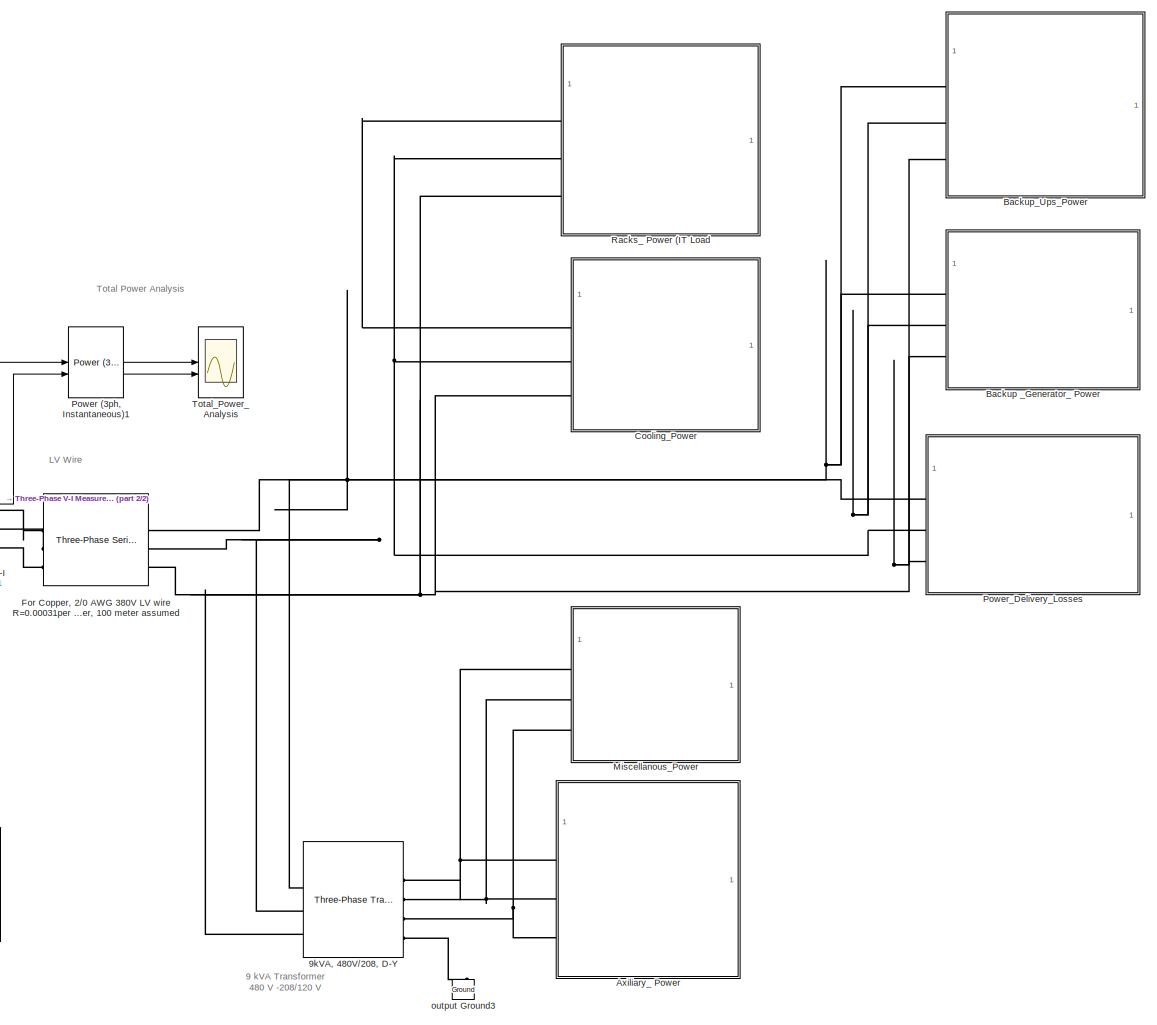
[diagram: root canvas - part 1/2, right side, full height]
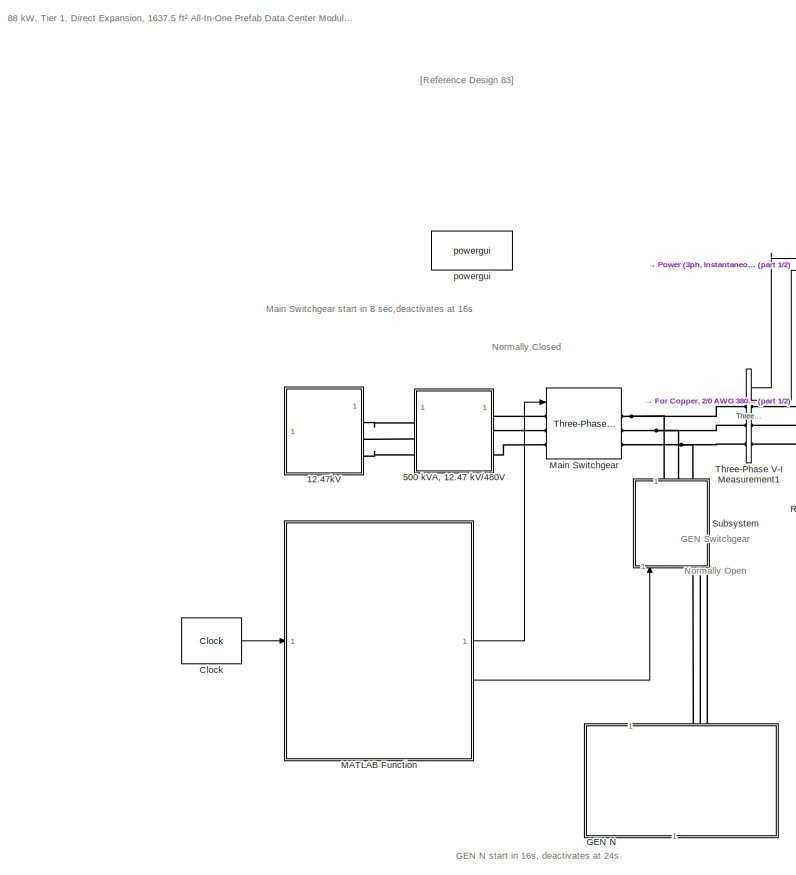
[diagram: root canvas - part 2/2, left side, full height]
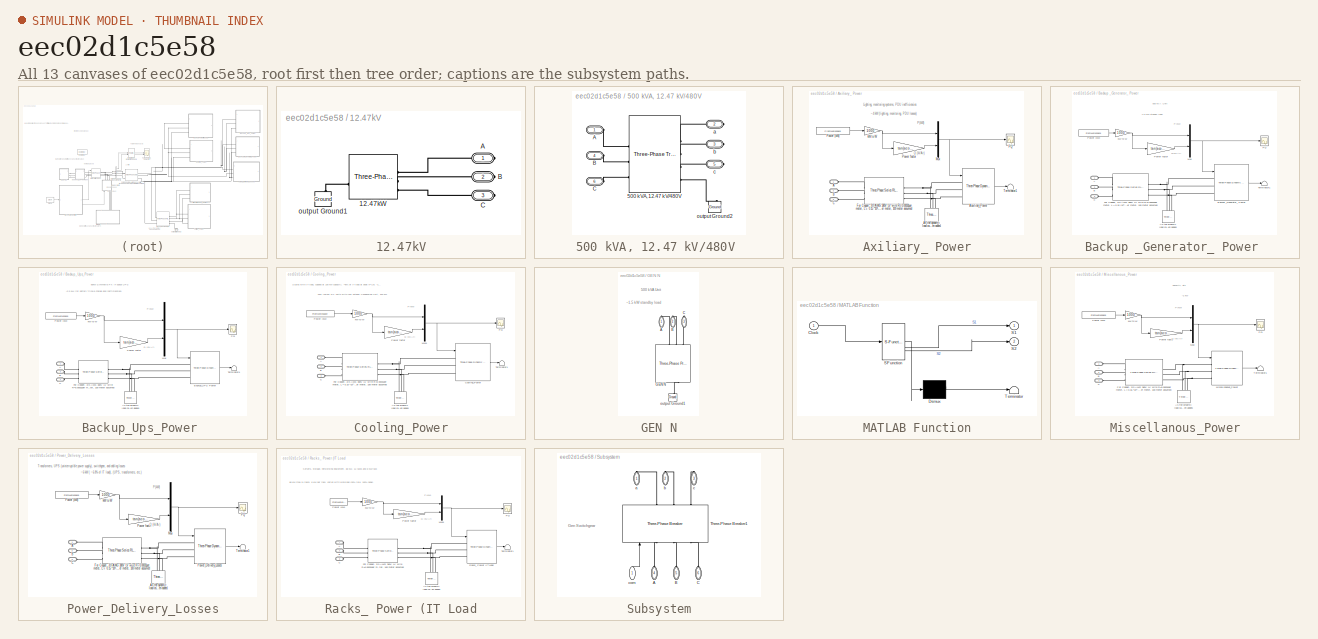
[diagram: thumbnail index - all 13 canvases of the model, root first then tree order]
MODEL slx_eec02d1c5e58
KIND model
CONFIG AbsTol = auto
CONFIG EnableMultiTasking = off
CONFIG FixedStep = auto
CONFIG InitFcn = load('DataCenterPower.mat')
CONFIG MaxStep = auto
CONFIG MinStep = auto
CONFIG RelTol = 1e-4
CONFIG SampleTimeConstraint = Unconstrained
CONFIG SolverName = ode45
CONFIG StartTime = 0.0
CONFIG StopTime = 24
BLOCK [SubSystem] 12.47kV
BLOCK [Reference] 12.47kV/12.47kW  REF=spsThreePhaseProgrammableVoltageSourceLib/Three-Phase
Programmable
Voltage Source
  SourceBlock = spsThreePhaseProgrammableVoltageSourceLib/Three-Phase\nProgrammable\nVoltage Source
  SourceType = Three-Phase Programmable Voltage Source
BLOCK [PMIOPort] 12.47kV/A
  Side = Right
BLOCK [PMIOPort] 12.47kV/B
  Port = 2
  Side = Right
BLOCK [PMIOPort] 12.47kV/C
  Port = 3
  Side = Right
BLOCK [Reference] 12.47kV/output Ground1  REF=spsGroundLib/Ground
  AttributesFormatString = \n
  NameLocation = right
  SourceBlock = spsGroundLib/Ground
  SourceType = Ground
BLOCK [SubSystem] 500 kVA, 12.47 kV//480V 
BLOCK [Reference] 500 kVA, 12.47 kV//480V /500 kVA, 12.47 kV//480V   REF=spsThreePhaseTransformerTwoWindingsLib/Three-Phase
Transformer
(Two Windings)
  LibrarySourceBlock = sps_lib/Power Grid Elements/Three-Phase\nTransformer\n(Two Windings)
  SourceBlock = spsThreePhaseTransformerTwoWindingsLib/Three-Phase\nTransformer\n(Two Windings)
  SourceType = Three-Phase Transformer (Two Windings)
BLOCK [PMIOPort] 500 kVA, 12.47 kV//480V /A
  Side = Left
BLOCK [PMIOPort] 500 kVA, 12.47 kV//480V /B
  Port = 4
  Side = Left
BLOCK [PMIOPort] 500 kVA, 12.47 kV//480V /C
  Port = 6
  Side = Left
BLOCK [PMIOPort] 500 kVA, 12.47 kV//480V /a
  Port = 2
  Side = Right
BLOCK [PMIOPort] 500 kVA, 12.47 kV//480V /b
  Port = 3
  Side = Right
BLOCK [PMIOPort] 500 kVA, 12.47 kV//480V /c
  Port = 5
  Side = Right
BLOCK [Reference] 500 kVA, 12.47 kV//480V /output Ground2  REF=spsGroundLib/Ground
  AttributesFormatString = \n
  NameLocation = right
  SourceBlock = spsGroundLib/Ground
  SourceType = Ground
BLOCK [Reference] 9kVA, 480V//208, D-Y  REF=spsThreePhaseTransformerTwoWindingsLib/Three-Phase
Transformer
(Two Windings)
  LibrarySourceBlock = sps_lib/Power Grid Elements/Three-Phase\nTransformer\n(Two Windings)
  SourceBlock = spsThreePhaseTransformerTwoWindingsLib/Three-Phase\nTransformer\n(Two Windings)
  SourceType = Three-Phase Transformer (Two Windings)
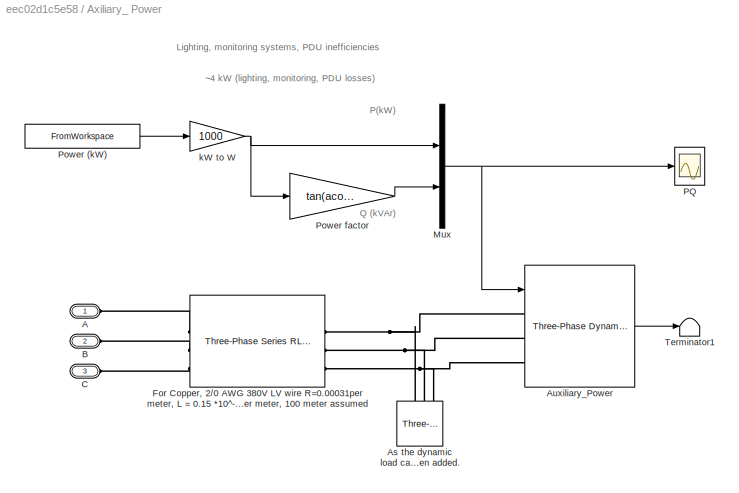
BLOCK [SubSystem] Axiliary_ Power
BLOCK [PMIOPort] Axiliary_ Power/A
  Side = Left
BLOCK [Reference] Axiliary_ Power/As the dynamic load cannot be connected to an inductive network (R-L in series), a small resistive load (1 W) has been added.  REF=spsThreePhaseParallelRLCLoadLib/Three-Phase
Parallel RLC Load
  AttributesFormatString = \n
  SourceBlock = spsThreePhaseParallelRLCLoadLib/Three-Phase\nParallel RLC Load
  SourceType = Three-Phase Parallel RLC Load
BLOCK [Reference] Axiliary_ Power/Auxiliary_Power  REF=spsThreePhaseDynamicLoadLib/Three-Phase
Dynamic Load
  SourceBlock = spsThreePhaseDynamicLoadLib/Three-Phase\nDynamic Load
  SourceType = Three-Phase Dynamic Load
BLOCK [PMIOPort] Axiliary_ Power/B
  Port = 2
  Side = Left
BLOCK [PMIOPort] Axiliary_ Power/C
  Port = 3
  Side = Left
BLOCK [Reference] Axiliary_ Power/For Copper, 2//0 AWG 380V LV wire R=0.00031per meter, L = 0.15 *10^-6 H per meter, 100 meter assumed   REF=spsThreePhaseSeriesRLCBranchLib/Three-Phase
Series RLC Branch
  AttributesFormatString = \n
  SourceBlock = spsThreePhaseSeriesRLCBranchLib/Three-Phase\nSeries RLC Branch
  SourceType = Three-Phase Series RLC Branch
BLOCK [Mux] Axiliary_ Power/Mux
  DisplayOption = bar
  Inputs = 2
BLOCK [Scope] Axiliary_ Power/PQ
  Floating = off
  NumInputPorts = 1
  ScopeSpecificationString = Simulink.scopes.TimeScopeBlockCfg('CurrentConfiguration', extmgr.ConfigurationSet(extmgr.Configuration('Core','General UI',true),extmgr.Configuration('Core','Source UI',true),extmgr.Configuration('Sources','WiredSimulink',true,'DataLoggingVariableName','ScopeData3'),extmgr.Configuration('Visuals','Time Domain',true,'TimeAxisLabels','All','SerializedDisplays',{struct('MinYLimReal','-597.75','MaxYLi...<+2052ch>
BLOCK [FromWorkspace] Axiliary_ Power/Power (kW)
  VariableName = AuxiliaryPowerkW
BLOCK [Gain] Axiliary_ Power/Power factor
  Gain = tan(acos(1))
BLOCK [Terminator] Axiliary_ Power/Terminator1
BLOCK [Gain] Axiliary_ Power/kW to W
  Gain = 1000
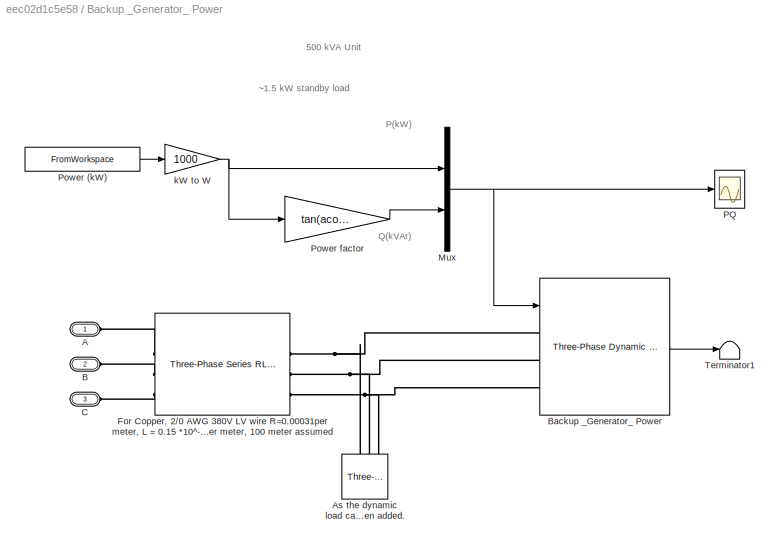
BLOCK [SubSystem] Backup _Generator_ Power 
BLOCK [PMIOPort] Backup _Generator_ Power /A
  Side = Left
BLOCK [Reference] Backup _Generator_ Power /As the dynamic load cannot be connected to an inductive network (R-L in series), a small resistive load (1 W) has been added.  REF=spsThreePhaseParallelRLCLoadLib/Three-Phase
Parallel RLC Load
  AttributesFormatString = \n
  SourceBlock = spsThreePhaseParallelRLCLoadLib/Three-Phase\nParallel RLC Load
  SourceType = Three-Phase Parallel RLC Load
BLOCK [PMIOPort] Backup _Generator_ Power /B
  Port = 2
  Side = Left
BLOCK [Reference] Backup _Generator_ Power /Backup _Generator_ Power   REF=spsThreePhaseDynamicLoadLib/Three-Phase
Dynamic Load
  SourceBlock = spsThreePhaseDynamicLoadLib/Three-Phase\nDynamic Load
  SourceType = Three-Phase Dynamic Load
BLOCK [PMIOPort] Backup _Generator_ Power /C
  Port = 3
  Side = Left
BLOCK [Reference] Backup _Generator_ Power /For Copper, 2//0 AWG 380V LV wire R=0.00031per meter, L = 0.15 *10^-6 H per meter, 100 meter assumed   REF=spsThreePhaseSeriesRLCBranchLib/Three-Phase
Series RLC Branch
  AttributesFormatString = \n
  SourceBlock = spsThreePhaseSeriesRLCBranchLib/Three-Phase\nSeries RLC Branch
  SourceType = Three-Phase Series RLC Branch
BLOCK [Mux] Backup _Generator_ Power /Mux
  DisplayOption = bar
  Inputs = 2
BLOCK [Scope] Backup _Generator_ Power /PQ
  Floating = off
  NumInputPorts = 1
  ScopeSpecificationString = Simulink.scopes.TimeScopeBlockCfg('CurrentConfiguration', extmgr.ConfigurationSet(extmgr.Configuration('Core','General UI',true),extmgr.Configuration('Core','Source UI',true),extmgr.Configuration('Sources','WiredSimulink',true,'DataLoggingVariableName','ScopeData1'),extmgr.Configuration('Visuals','Time Domain',true,'TimeAxisLabels','All','SerializedDisplays',{struct('MinYLimReal','-1476.25','MaxYL...<+2126ch>
BLOCK [FromWorkspace] Backup _Generator_ Power /Power (kW)
  VariableName = BackupGeneratorPowerkW
BLOCK [Gain] Backup _Generator_ Power /Power factor
  Gain = tan(acos(1))
BLOCK [Terminator] Backup _Generator_ Power /Terminator1
BLOCK [Gain] Backup _Generator_ Power /kW to W
  Gain = 1000
BLOCK [SubSystem] Backup_Ups_Power 
BLOCK [PMIOPort] Backup_Ups_Power /A
  Side = Left
BLOCK [Reference] Backup_Ups_Power /As the dynamic load cannot be connected to an inductive network (R-L in series), a small resistive load (1 W) has been added.  REF=spsThreePhaseParallelRLCLoadLib/Three-Phase
Parallel RLC Load
  AttributesFormatString = \n
  SourceBlock = spsThreePhaseParallelRLCLoadLib/Three-Phase\nParallel RLC Load
  SourceType = Three-Phase Parallel RLC Load
BLOCK [PMIOPort] Backup_Ups_Power /B
  Port = 2
  Side = Left
BLOCK [Reference] Backup_Ups_Power /Backup_UPS Power  REF=spsThreePhaseDynamicLoadLib/Three-Phase
Dynamic Load
  SourceBlock = spsThreePhaseDynamicLoadLib/Three-Phase\nDynamic Load
  SourceType = Three-Phase Dynamic Load
BLOCK [PMIOPort] Backup_Ups_Power /C
  Port = 3
  Side = Left
BLOCK [Reference] Backup_Ups_Power /For Copper, 2//0 AWG 380V LV wire R=0.00031per meter, L = 0.15 *10^-6 H per meter, 100 meter assumed   REF=spsThreePhaseSeriesRLCBranchLib/Three-Phase
Series RLC Branch
  AttributesFormatString = \n
  SourceBlock = spsThreePhaseSeriesRLCBranchLib/Three-Phase\nSeries RLC Branch
  SourceType = Three-Phase Series RLC Branch
BLOCK [Mux] Backup_Ups_Power /Mux
  DisplayOption = bar
  Inputs = 2
BLOCK [Scope] Backup_Ups_Power /PQ
  Floating = off
  NumInputPorts = 1
  ScopeSpecificationString = Simulink.scopes.TimeScopeBlockCfg('CurrentConfiguration', extmgr.ConfigurationSet(extmgr.Configuration('Core','General UI',true),extmgr.Configuration('Core','Source UI',true),extmgr.Configuration('Sources','WiredSimulink',true,'DataLoggingVariableName','ScopeData5'),extmgr.Configuration('Visuals','Time Domain',true,'TimeAxisLabels','All','SerializedDisplays',{struct('MinYLimReal','-374.125','MaxYL...<+2071ch>
BLOCK [FromWorkspace] Backup_Ups_Power /Power (kW)
  VariableName = BackupUPSPowerkW
BLOCK [Gain] Backup_Ups_Power /Power factor
  Gain = tan(acos(1))
BLOCK [Terminator] Backup_Ups_Power /Terminator1
BLOCK [Gain] Backup_Ups_Power /kW to W
  Gain = 1000
BLOCK [Clock] Clock
BLOCK [SubSystem] Cooling_Power
BLOCK [PMIOPort] Cooling_Power/A
  Side = Left
BLOCK [Reference] Cooling_Power/As the dynamic load cannot be connected to an inductive network (R-L in series), a small resistive load (1 W) has been added.  REF=spsThreePhaseParallelRLCLoadLib/Three-Phase
Parallel RLC Load
  AttributesFormatString = \n
  SourceBlock = spsThreePhaseParallelRLCLoadLib/Three-Phase\nParallel RLC Load
  SourceType = Three-Phase Parallel RLC Load
BLOCK [PMIOPort] Cooling_Power/B
  Port = 2
  Side = Left
BLOCK [PMIOPort] Cooling_Power/C
  Port = 3
  Side = Left
BLOCK [Reference] Cooling_Power/Cooling_Power  REF=spsThreePhaseDynamicLoadLib/Three-Phase
Dynamic Load
  SourceBlock = spsThreePhaseDynamicLoadLib/Three-Phase\nDynamic Load
  SourceType = Three-Phase Dynamic Load
BLOCK [Reference] Cooling_Power/For Copper, 2//0 AWG 380V LV wire R=0.00031per meter, L = 0.15 *10^-6 H per meter, 100 meter assumed   REF=spsThreePhaseSeriesRLCBranchLib/Three-Phase
Series RLC Branch
  AttributesFormatString = \n
  SourceBlock = spsThreePhaseSeriesRLCBranchLib/Three-Phase\nSeries RLC Branch
  SourceType = Three-Phase Series RLC Branch
BLOCK [Mux] Cooling_Power/Mux1
  DisplayOption = bar
  Inputs = 2
BLOCK [Scope] Cooling_Power/PQ
  Floating = off
  NumInputPorts = 1
  ScopeSpecificationString = Simulink.scopes.TimeScopeBlockCfg('CurrentConfiguration', extmgr.ConfigurationSet(extmgr.Configuration('Core','General UI',true,'FigureColor',[0 0 0]),extmgr.Configuration('Core','Source UI',true),extmgr.Configuration('Sources','WiredSimulink',true,'DataLoggingVariableName','ScopeData2'),extmgr.Configuration('Visuals','Time Domain',true,'TimeAxisLabels','All','SerializedDisplays',{struct('MinYLimR...<+2126ch>
BLOCK [FromWorkspace] Cooling_Power/Power (kW)
  VariableName = CoolingPowerkW
BLOCK [Gain] Cooling_Power/Power factor
  Gain = tan(acos(0.85))
BLOCK [Terminator] Cooling_Power/Terminator1
BLOCK [Gain] Cooling_Power/kW to W
  Gain = 1000
BLOCK [Reference] For Copper, 2//0 AWG 380V LV wire R=0.00031per meter, L = 0.15 *10^-6 H per meter, 100 meter assumed   REF=spsThreePhaseSeriesRLCBranchLib/Three-Phase
Series RLC Branch
  AttributesFormatString = \n
  SourceBlock = spsThreePhaseSeriesRLCBranchLib/Three-Phase\nSeries RLC Branch
  SourceType = Three-Phase Series RLC Branch
BLOCK [SubSystem] GEN N
  NameLocation = right
BLOCK [PMIOPort] GEN N/A
  NameLocation = right
  Side = Right
BLOCK [PMIOPort] GEN N/B
  NameLocation = right
  Port = 2
  Side = Right
BLOCK [PMIOPort] GEN N/C
  NameLocation = right
  Port = 3
  Side = Right
BLOCK [Reference] GEN N/GEN N  REF=spsThreePhaseProgrammableVoltageSourceLib/Three-Phase
Programmable
Voltage Source
  NameLocation = right
  SourceBlock = spsThreePhaseProgrammableVoltageSourceLib/Three-Phase\nProgrammable\nVoltage Source
  SourceType = Three-Phase Programmable Voltage Source
BLOCK [Reference] GEN N/output Ground1  REF=spsGroundLib/Ground
  AttributesFormatString = \n
  NameLocation = right
  SourceBlock = spsGroundLib/Ground
  SourceType = Ground
BLOCK [SubSystem] MATLAB Function
  ErrorFcn = Stateflow.Translate.translate
  PermitHierarchicalResolution = ExplicitOnly
  SFBlockType = MATLAB Function
  TreatAsAtomicUnit = on
BLOCK [Demux] MATLAB Function/ Demux 
  Outputs = 1
BLOCK [S-Function] MATLAB Function/ SFunction 
  EnableBusSupport = on
  FunctionName = sf_sfun
  PortCounts = [1 3]
  SFcnIsStateOwnerBlock = off
  SFunctionDeploymentMode = off
  Tag = Stateflow S-Function 1
BLOCK [Terminator] MATLAB Function/ Terminator 
BLOCK [Inport] MATLAB Function/Clock
BLOCK [Outport] MATLAB Function/S1
BLOCK [Outport] MATLAB Function/S2
  Port = 2
BLOCK [Reference] Main Switchgear  REF=spsThreePhaseBreakerLib/Three-Phase Breaker
  LibrarySourceBlock = sps_lib/Power Grid Elements/Three-Phase Breaker
  SourceBlock = spsThreePhaseBreakerLib/Three-Phase Breaker
  SourceType = Three-Phase Breaker
BLOCK [SubSystem] Miscellanous_Power
BLOCK [PMIOPort] Miscellanous_Power/A
  Side = Left
BLOCK [Reference] Miscellanous_Power/As the dynamic load cannot be connected to an inductive network (R-L in series), a small resistive load (1 W) has been added.  REF=spsThreePhaseParallelRLCLoadLib/Three-Phase
Parallel RLC Load
  AttributesFormatString = \n
  SourceBlock = spsThreePhaseParallelRLCLoadLib/Three-Phase\nParallel RLC Load
  SourceType = Three-Phase Parallel RLC Load
BLOCK [PMIOPort] Miscellanous_Power/B
  Port = 2
  Side = Left
BLOCK [PMIOPort] Miscellanous_Power/C
  Port = 3
  Side = Left
BLOCK [Reference] Miscellanous_Power/For Copper, 2//0 AWG 380V LV wire R=0.00031per meter, L = 0.15 *10^-6 H per meter, 100 meter assumed   REF=spsThreePhaseSeriesRLCBranchLib/Three-Phase
Series RLC Branch
  AttributesFormatString = \n
  SourceBlock = spsThreePhaseSeriesRLCBranchLib/Three-Phase\nSeries RLC Branch
  SourceType = Three-Phase Series RLC Branch
BLOCK [Reference] Miscellanous_Power/Miscellaneous_Power  REF=spsThreePhaseDynamicLoadLib/Three-Phase
Dynamic Load
  SourceBlock = spsThreePhaseDynamicLoadLib/Three-Phase\nDynamic Load
  SourceType = Three-Phase Dynamic Load
BLOCK [Mux] Miscellanous_Power/Mux
  DisplayOption = bar
  Inputs = 2
BLOCK [Scope] Miscellanous_Power/PQ
  Floating = off
  NumInputPorts = 1
  ScopeSpecificationString = Simulink.scopes.TimeScopeBlockCfg('CurrentConfiguration', extmgr.ConfigurationSet(extmgr.Configuration('Core','General UI',true),extmgr.Configuration('Core','Source UI',true),extmgr.Configuration('Sources','WiredSimulink',true,'DataLoggingVariableName','ScopeData7'),extmgr.Configuration('Visuals','Time Domain',true,'TimeAxisLabels','All','SerializedDisplays',{struct('MinYLimReal','-199.01888','Max...<+2105ch>
BLOCK [FromWorkspace] Miscellanous_Power/Power (kW)
  VariableName = MiscellaneousPowerkW
BLOCK [Gain] Miscellanous_Power/Power factor
  Gain = tan(acos(1))
BLOCK [Terminator] Miscellanous_Power/Terminator1
BLOCK [Gain] Miscellanous_Power/kW to W
  Gain = 1000
BLOCK [Reference] Power (3ph, Instantaneous)1  REF=spsPower3phInstantaneousLib/Power
(3ph, Instantaneous)
  SourceBlock = spsPower3phInstantaneousLib/Power\n(3ph, Instantaneous)
  SourceType = Power (3ph, Instantaneous)
BLOCK [SubSystem] Power_Delivery_Losses
BLOCK [PMIOPort] Power_Delivery_Losses/A
  Side = Left
BLOCK [Reference] Power_Delivery_Losses/As the dynamic load cannot be connected to an inductive network (R-L in series), a small resistive load (1 W) has been added.  REF=spsThreePhaseParallelRLCLoadLib/Three-Phase
Parallel RLC Load
  AttributesFormatString = \n
  SourceBlock = spsThreePhaseParallelRLCLoadLib/Three-Phase\nParallel RLC Load
  SourceType = Three-Phase Parallel RLC Load
BLOCK [PMIOPort] Power_Delivery_Losses/B
  Port = 2
  Side = Left
BLOCK [PMIOPort] Power_Delivery_Losses/C
  Port = 3
  Side = Left
BLOCK [Reference] Power_Delivery_Losses/For Copper, 2//0 AWG 380V LV wire R=0.00031per meter, L = 0.15 *10^-6 H per meter, 100 meter assumed   REF=spsThreePhaseSeriesRLCBranchLib/Three-Phase
Series RLC Branch
  AttributesFormatString = \n
  SourceBlock = spsThreePhaseSeriesRLCBranchLib/Three-Phase\nSeries RLC Branch
  SourceType = Three-Phase Series RLC Branch
BLOCK [Mux] Power_Delivery_Losses/Mux
  DisplayOption = bar
  Inputs = 2
BLOCK [Scope] Power_Delivery_Losses/PQ
  Floating = off
  NumInputPorts = 1
  ScopeSpecificationString = Simulink.scopes.TimeScopeBlockCfg('CurrentConfiguration', extmgr.ConfigurationSet(extmgr.Configuration('Core','General UI',true),extmgr.Configuration('Core','Source UI',true),extmgr.Configuration('Sources','WiredSimulink',true,'DataLoggingVariableName','ScopeData4'),extmgr.Configuration('Visuals','Time Domain',true,'TimeAxisLabels','All','SerializedDisplays',{struct('MinYLimReal','-832.75','MaxYLi...<+2097ch>
BLOCK [FromWorkspace] Power_Delivery_Losses/Power (kW)
  VariableName = PowerDeliveryLosseskW
BLOCK [Gain] Power_Delivery_Losses/Power factor
  Gain = tan(acos(1))
BLOCK [Reference] Power_Delivery_Losses/Power_Delivery_Losses  REF=spsThreePhaseDynamicLoadLib/Three-Phase
Dynamic Load
  SourceBlock = spsThreePhaseDynamicLoadLib/Three-Phase\nDynamic Load
  SourceType = Three-Phase Dynamic Load
BLOCK [Terminator] Power_Delivery_Losses/Terminator1
BLOCK [Gain] Power_Delivery_Losses/kW to W
  Gain = 1000
BLOCK [SubSystem] Racks_ Power (IT Load
BLOCK [PMIOPort] Racks_ Power (IT Load/A
  Side = Left
BLOCK [Reference] Racks_ Power (IT Load/As the dynamic load cannot be connected to an inductive network (R-L in series), a small resistive load (1 W) has been added.  REF=spsThreePhaseParallelRLCLoadLib/Three-Phase
Parallel RLC Load
  AttributesFormatString = \n
  SourceBlock = spsThreePhaseParallelRLCLoadLib/Three-Phase\nParallel RLC Load
  SourceType = Three-Phase Parallel RLC Load
BLOCK [PMIOPort] Racks_ Power (IT Load/B
  Port = 2
  Side = Left
BLOCK [PMIOPort] Racks_ Power (IT Load/C
  Port = 3
  Side = Left
BLOCK [Reference] Racks_ Power (IT Load/For Copper, 2//0 AWG 380V LV wire R=0.00031per meter, L = 0.15 *10^-6 H per meter, 100 meter assumed   REF=spsThreePhaseSeriesRLCBranchLib/Three-Phase
Series RLC Branch
  AttributesFormatString = \n
  SourceBlock = spsThreePhaseSeriesRLCBranchLib/Three-Phase\nSeries RLC Branch
  SourceType = Three-Phase Series RLC Branch
BLOCK [Mux] Racks_ Power (IT Load/Mux1
  DisplayOption = bar
  Inputs = 2
BLOCK [Scope] Racks_ Power (IT Load/PQ
  Floating = off
  NumInputPorts = 1
  ScopeSpecificationString = Simulink.scopes.TimeScopeBlockCfg('CurrentConfiguration', extmgr.ConfigurationSet(extmgr.Configuration('Core','General UI',true,'FigureColor',[0 0 0]),extmgr.Configuration('Core','Source UI',true),extmgr.Configuration('Sources','WiredSimulink',true,'DataLoggingVariableName','ScopeData1'),extmgr.Configuration('Visuals','Time Domain',true,'TimeAxisLabels','All','SerializedDisplays',{struct('MinYLimR...<+2059ch>
BLOCK [FromWorkspace] Racks_ Power (IT Load/Power (kW)
  VariableName = RackPowerkW
BLOCK [Gain] Racks_ Power (IT Load/Power factor
  Gain = tan(acos(0.95))
BLOCK [Reference] Racks_ Power (IT Load/Racks_ Power (IT Load  REF=spsThreePhaseDynamicLoadLib/Three-Phase
Dynamic Load
  SourceBlock = spsThreePhaseDynamicLoadLib/Three-Phase\nDynamic Load
  SourceType = Three-Phase Dynamic Load
BLOCK [Terminator] Racks_ Power (IT Load/Terminator1
BLOCK [Gain] Racks_ Power (IT Load/kW to W
  Gain = 1000
BLOCK [SubSystem] Subsystem
BLOCK [PMIOPort] Subsystem/A
  NameLocation = right
  Port = 4
  Side = Left
BLOCK [PMIOPort] Subsystem/B
  NameLocation = right
  Port = 5
  Side = Left
BLOCK [PMIOPort] Subsystem/C
  NameLocation = right
  Port = 6
  Side = Left
BLOCK [Reference] Subsystem/Three-Phase Breaker1  REF=spsThreePhaseBreakerLib/Three-Phase Breaker
  LibrarySourceBlock = sps_lib/Power Grid Elements/Three-Phase Breaker
  NameLocation = right
  SourceBlock = spsThreePhaseBreakerLib/Three-Phase Breaker
  SourceType = Three-Phase Breaker
BLOCK [PMIOPort] Subsystem/a
  NameLocation = right
  Side = Right
BLOCK [PMIOPort] Subsystem/b
  NameLocation = right
  Port = 2
  Side = Right
BLOCK [PMIOPort] Subsystem/c
  NameLocation = right
  Port = 3
  Side = Right
BLOCK [Inport] Subsystem/com
  NameLocation = right
BLOCK [Reference] Three-Phase V-I Measurement1  REF=spsThreePhaseVIMeasurementLib/Three-Phase
V-I Measurement
  SourceBlock = spsThreePhaseVIMeasurementLib/Three-Phase\nV-I Measurement
  SourceType = Three-Phase VI Measurement
BLOCK [Scope] Total_Power_Analysis
  Floating = off
  NumInputPorts = 2
  ScopeSpecificationString = Simulink.scopes.TimeScopeBlockCfg('CurrentConfiguration', extmgr.ConfigurationSet(extmgr.Configuration('Core','General UI',true),extmgr.Configuration('Core','Source UI',true),extmgr.Configuration('Sources','WiredSimulink',true,'DataLoggingVariableName','ScopeData1'),extmgr.Configuration('Visuals','Time Domain',true,'TimeAxisLabels','All','SerializedDisplays',{struct('MinYLimReal','10551.08139','Ma...<+2346ch>
BLOCK [Reference] output Ground3  REF=spsGroundLib/Ground
  AttributesFormatString = \n
  NameLocation = right
  SourceBlock = spsGroundLib/Ground
  SourceType = Ground
BLOCK [Reference] powergui  REF=sps_lib/powergui
  LibrarySourceBlock = sps_lib/powergui
  Priority = 1
  SourceBlock = sps_lib/powergui
  SourceType = PSB option menu block
ANNOTATION (root): GEN Switchgear
ANNOTATION (root): 9 kVA Transformer 480 V -208/120 V
ANNOTATION (root): GEN N start in 16s, deactivates at 24s
ANNOTATION (root): LV Wire
ANNOTATION (root): Main Switchgear start in 8 sec,deactivates at 16s
ANNOTATION (root): Normally Closed
ANNOTATION (root): Normally Open
ANNOTATION (root): Total Power Analysis
ANNOTATION (root): 88 kW, Tier 1, Direct Expansion, 1637.5 ft² All-In-One Prefab Data Center Module - PDU
ANNOTATION (root): [Reference Design 83]
ANNOTATION Axiliary_ Power: Lighting, monitoring systems, PDU inefficiencies
ANNOTATION Axiliary_ Power: ~4 kW (lighting, monitoring, PDU losses)
ANNOTATION Axiliary_ Power: P(kW)
ANNOTATION Axiliary_ Power: Q (kVAr)
ANNOTATION Backup _Generator_ Power : 500 kVA Unit ​
ANNOTATION Backup _Generator_ Power : ~1.5 kW standby load ​
ANNOTATION Backup _Generator_ Power : P(kW)
ANNOTATION Backup _Generator_ Power : Q(kVAr)
ANNOTATION Backup_Ups_Power : ~2.5 kW (for battery trickle charge and inefficiencies)
ANNOTATION Backup_Ups_Power : 90kW Symmetra PX IT space UPS ​
ANNOTATION Backup_Ups_Power : P(kW)
ANNOTATION Backup_Ups_Power : Q (kVAr)
ANNOTATION Cooling_Power: Four InRow DX units with four outdoor Condensing Unit, 100 kW
ANNOTATION Cooling_Power: Scales with IT load, capped at 100 kW capacity, ~45% of IT load at peak (PUE ~1.64)
ANNOTATION Cooling_Power: P(kW)
ANNOTATION Cooling_Power: Q (kVAr)
ANNOTATION GEN N: 500 kVA Unit ​
ANNOTATION GEN N: ~1.5 kW standby load ​
ANNOTATION Miscellanous_Power: ~1 kW
ANNOTATION Miscellanous_Power: security, etc ​ ​
ANNOTATION Miscellanous_Power: P(kW)
ANNOTATION Miscellanous_Power: Q (kVAr)
ANNOTATION Power_Delivery_Losses: Transformers, UPS (uninterruptible power supply), switchgear, and cabling losses
ANNOTATION Power_Delivery_Losses: ~6 kW ( ~6.8% of IT load), (UPS, transformers, etc.)
ANNOTATION Power_Delivery_Losses: P(kW)
ANNOTATION Power_Delivery_Losses: Q (kVAr)
ANNOTATION Racks_ Power (IT Load: Servers, storage, networking equipment. 88 kW, 11 racks and 8 kW/rack
ANNOTATION Racks_ Power (IT Load: 88 kW max,11 racks, 8 kW per rack, varies with workload (50% idle, 100% peak)
ANNOTATION Racks_ Power (IT Load: P(kW)
ANNOTATION Racks_ Power (IT Load: Q (kVAr)
ANNOTATION Subsystem: Gen Switchgear
LINE Axiliary_ Power/Auxiliary_Power:1 -> Axiliary_ Power/Terminator1:1
NET Axiliary_ Power/Mux:1 -> Axiliary_ Power/Auxiliary_Power:1, Axiliary_ Power/PQ:1
LINE Axiliary_ Power/Power (kW):1 -> Axiliary_ Power/kW to W:1
LINE Axiliary_ Power/Power factor:1 -> Axiliary_ Power/Mux:2
NET Axiliary_ Power/kW to W:1 -> Axiliary_ Power/Mux:1, Axiliary_ Power/Power factor:1
LINE Backup _Generator_ Power /Backup _Generator_ Power :1 -> Backup _Generator_ Power /Terminator1:1
NET Backup _Generator_ Power /Mux:1 -> Backup _Generator_ Power /Backup _Generator_ Power :1, Backup _Generator_ Power /PQ:1
LINE Backup _Generator_ Power /Power (kW):1 -> Backup _Generator_ Power /kW to W:1
LINE Backup _Generator_ Power /Power factor:1 -> Backup _Generator_ Power /Mux:2
NET Backup _Generator_ Power /kW to W:1 -> Backup _Generator_ Power /Mux:1, Backup _Generator_ Power /Power factor:1
LINE Backup_Ups_Power /Backup_UPS Power:1 -> Backup_Ups_Power /Terminator1:1
NET Backup_Ups_Power /Mux:1 -> Backup_Ups_Power /Backup_UPS Power:1, Backup_Ups_Power /PQ:1
LINE Backup_Ups_Power /Power (kW):1 -> Backup_Ups_Power /kW to W:1
LINE Backup_Ups_Power /Power factor:1 -> Backup_Ups_Power /Mux:2
NET Backup_Ups_Power /kW to W:1 -> Backup_Ups_Power /Mux:1, Backup_Ups_Power /Power factor:1
LINE Clock:1 -> MATLAB Function:1
LINE Cooling_Power/Cooling_Power:1 -> Cooling_Power/Terminator1:1
NET Cooling_Power/Mux1:1 -> Cooling_Power/Cooling_Power:1, Cooling_Power/PQ:1
LINE Cooling_Power/Power (kW):1 -> Cooling_Power/kW to W:1
LINE Cooling_Power/Power factor:1 -> Cooling_Power/Mux1:2
NET Cooling_Power/kW to W:1 -> Cooling_Power/Mux1:1, Cooling_Power/Power factor:1
LINE MATLAB Function:1 -> Main Switchgear:1
LINE MATLAB Function:2 -> Subsystem:1
LINE Miscellanous_Power/Miscellaneous_Power:1 -> Miscellanous_Power/Terminator1:1
NET Miscellanous_Power/Mux:1 -> Miscellanous_Power/Miscellaneous_Power:1, Miscellanous_Power/PQ:1
LINE Miscellanous_Power/Power (kW):1 -> Miscellanous_Power/kW to W:1
LINE Miscellanous_Power/Power factor:1 -> Miscellanous_Power/Mux:2
NET Miscellanous_Power/kW to W:1 -> Miscellanous_Power/Mux:1, Miscellanous_Power/Power factor:1
LINE Power (3ph, Instantaneous)1:1 -> Total_Power_Analysis:1
LINE Power (3ph, Instantaneous)1:2 -> Total_Power_Analysis:2
NET Power_Delivery_Losses/Mux:1 -> Power_Delivery_Losses/PQ:1, Power_Delivery_Losses/Power_Delivery_Losses:1
LINE Power_Delivery_Losses/Power (kW):1 -> Power_Delivery_Losses/kW to W:1
LINE Power_Delivery_Losses/Power factor:1 -> Power_Delivery_Losses/Mux:2
LINE Power_Delivery_Losses/Power_Delivery_Losses:1 -> Power_Delivery_Losses/Terminator1:1
NET Power_Delivery_Losses/kW to W:1 -> Power_Delivery_Losses/Mux:1, Power_Delivery_Losses/Power factor:1
NET Racks_ Power (IT Load/Mux1:1 -> Racks_ Power (IT Load/PQ:1, Racks_ Power (IT Load/Racks_ Power (IT Load:1
LINE Racks_ Power (IT Load/Power (kW):1 -> Racks_ Power (IT Load/kW to W:1
LINE Racks_ Power (IT Load/Power factor:1 -> Racks_ Power (IT Load/Mux1:2
LINE Racks_ Power (IT Load/Racks_ Power (IT Load:1 -> Racks_ Power (IT Load/Terminator1:1
NET Racks_ Power (IT Load/kW to W:1 -> Racks_ Power (IT Load/Mux1:1, Racks_ Power (IT Load/Power factor:1
LINE Subsystem/com:1 -> Subsystem/Three-Phase Breaker1:1
LINE Three-Phase V-I Measurement1:1 -> Power (3ph, Instantaneous)1:1
LINE Three-Phase V-I Measurement1:2 -> Power (3ph, Instantaneous)1:2
PLINE 12.47kV/12.47kW:LConn1 -- 12.47kV/output Ground1:LConn1
PLINE 12.47kV/12.47kW:RConn1 -- 12.47kV/A:RConn1
PLINE 12.47kV/12.47kW:RConn2 -- 12.47kV/B:RConn1
PLINE 12.47kV/12.47kW:RConn3 -- 12.47kV/C:RConn1
PLINE 12.47kV:RConn1 -- 500 kVA, 12.47 kV//480V :LConn1
PLINE 12.47kV:RConn2 -- 500 kVA, 12.47 kV//480V :LConn2
PLINE 12.47kV:RConn3 -- 500 kVA, 12.47 kV//480V :LConn3
PLINE 500 kVA, 12.47 kV//480V /500 kVA, 12.47 kV//480V :LConn1 -- 500 kVA, 12.47 kV//480V /A:RConn1
PLINE 500 kVA, 12.47 kV//480V /500 kVA, 12.47 kV//480V :LConn2 -- 500 kVA, 12.47 kV//480V /B:RConn1
PLINE 500 kVA, 12.47 kV//480V /500 kVA, 12.47 kV//480V :LConn3 -- 500 kVA, 12.47 kV//480V /C:RConn1
PLINE 500 kVA, 12.47 kV//480V /500 kVA, 12.47 kV//480V :RConn1 -- 500 kVA, 12.47 kV//480V /a:RConn1
PLINE 500 kVA, 12.47 kV//480V /500 kVA, 12.47 kV//480V :RConn2 -- 500 kVA, 12.47 kV//480V /b:RConn1
PLINE 500 kVA, 12.47 kV//480V /500 kVA, 12.47 kV//480V :RConn3 -- 500 kVA, 12.47 kV//480V /c:RConn1
PLINE 500 kVA, 12.47 kV//480V /500 kVA, 12.47 kV//480V :RConn4 -- 500 kVA, 12.47 kV//480V /output Ground2:LConn1
PLINE 500 kVA, 12.47 kV//480V :RConn1 -- Main Switchgear:LConn1
PLINE 500 kVA, 12.47 kV//480V :RConn2 -- Main Switchgear:LConn2
PLINE 500 kVA, 12.47 kV//480V :RConn3 -- Main Switchgear:LConn3
PNET net1: 9kVA, 480V//208, D-Y:LConn1 -- Backup _Generator_ Power :LConn1 -- Backup_Ups_Power :LConn1 -- Cooling_Power:LConn1 -- For Copper, 2//0 AWG 380V LV wire R=0.00031per meter, L = 0.15 *10^-6 H per meter, 100 meter assumed :RConn1 -- Power_Delivery_Losses:LConn1 -- Racks_ Power (IT Load:LConn1
PNET net2: 9kVA, 480V//208, D-Y:LConn2 -- Backup _Generator_ Power :LConn2 -- Backup_Ups_Power :LConn2 -- Cooling_Power:LConn2 -- For Copper, 2//0 AWG 380V LV wire R=0.00031per meter, L = 0.15 *10^-6 H per meter, 100 meter assumed :RConn2 -- Power_Delivery_Losses:LConn2 -- Racks_ Power (IT Load:LConn2
PNET net3: 9kVA, 480V//208, D-Y:LConn3 -- Backup _Generator_ Power :LConn3 -- Backup_Ups_Power :LConn3 -- Cooling_Power:LConn3 -- For Copper, 2//0 AWG 380V LV wire R=0.00031per meter, L = 0.15 *10^-6 H per meter, 100 meter assumed :RConn3 -- Power_Delivery_Losses:LConn3 -- Racks_ Power (IT Load:LConn3
PNET net4: 9kVA, 480V//208, D-Y:RConn1 -- Axiliary_ Power:LConn1 -- Miscellanous_Power:LConn1
PNET net5: 9kVA, 480V//208, D-Y:RConn2 -- Axiliary_ Power:LConn2 -- Miscellanous_Power:LConn2
PNET net6: 9kVA, 480V//208, D-Y:RConn3 -- Axiliary_ Power:LConn3 -- Miscellanous_Power:LConn3
PLINE 9kVA, 480V//208, D-Y:RConn4 -- output Ground3:LConn1
PLINE Axiliary_ Power/A:RConn1 -- Axiliary_ Power/For Copper, 2//0 AWG 380V LV wire R=0.00031per meter, L = 0.15 *10^-6 H per meter, 100 meter assumed :LConn1
PNET net7: Axiliary_ Power/As the dynamic load cannot be connected to an inductive network (R-L in series), a small resistive load (1 W) has been added.:LConn1 -- Axiliary_ Power/Auxiliary_Power:LConn1 -- Axiliary_ Power/For Copper, 2//0 AWG 380V LV wire R=0.00031per meter, L = 0.15 *10^-6 H per meter, 100 meter assumed :RConn1
PNET net8: Axiliary_ Power/As the dynamic load cannot be connected to an inductive network (R-L in series), a small resistive load (1 W) has been added.:LConn2 -- Axiliary_ Power/Auxiliary_Power:LConn2 -- Axiliary_ Power/For Copper, 2//0 AWG 380V LV wire R=0.00031per meter, L = 0.15 *10^-6 H per meter, 100 meter assumed :RConn2
PNET net9: Axiliary_ Power/As the dynamic load cannot be connected to an inductive network (R-L in series), a small resistive load (1 W) has been added.:LConn3 -- Axiliary_ Power/Auxiliary_Power:LConn3 -- Axiliary_ Power/For Copper, 2//0 AWG 380V LV wire R=0.00031per meter, L = 0.15 *10^-6 H per meter, 100 meter assumed :RConn3
PLINE Axiliary_ Power/B:RConn1 -- Axiliary_ Power/For Copper, 2//0 AWG 380V LV wire R=0.00031per meter, L = 0.15 *10^-6 H per meter, 100 meter assumed :LConn2
PLINE Axiliary_ Power/C:RConn1 -- Axiliary_ Power/For Copper, 2//0 AWG 380V LV wire R=0.00031per meter, L = 0.15 *10^-6 H per meter, 100 meter assumed :LConn3
PLINE Backup _Generator_ Power /A:RConn1 -- Backup _Generator_ Power /For Copper, 2//0 AWG 380V LV wire R=0.00031per meter, L = 0.15 *10^-6 H per meter, 100 meter assumed :LConn1
PNET net10: Backup _Generator_ Power /As the dynamic load cannot be connected to an inductive network (R-L in series), a small resistive load (1 W) has been added.:LConn1 -- Backup _Generator_ Power /Backup _Generator_ Power :LConn1 -- Backup _Generator_ Power /For Copper, 2//0 AWG 380V LV wire R=0.00031per meter, L = 0.15 *10^-6 H per meter, 100 meter assumed :RConn1
PNET net11: Backup _Generator_ Power /As the dynamic load cannot be connected to an inductive network (R-L in series), a small resistive load (1 W) has been added.:LConn2 -- Backup _Generator_ Power /Backup _Generator_ Power :LConn2 -- Backup _Generator_ Power /For Copper, 2//0 AWG 380V LV wire R=0.00031per meter, L = 0.15 *10^-6 H per meter, 100 meter assumed :RConn2
PNET net12: Backup _Generator_ Power /As the dynamic load cannot be connected to an inductive network (R-L in series), a small resistive load (1 W) has been added.:LConn3 -- Backup _Generator_ Power /Backup _Generator_ Power :LConn3 -- Backup _Generator_ Power /For Copper, 2//0 AWG 380V LV wire R=0.00031per meter, L = 0.15 *10^-6 H per meter, 100 meter assumed :RConn3
PLINE Backup _Generator_ Power /B:RConn1 -- Backup _Generator_ Power /For Copper, 2//0 AWG 380V LV wire R=0.00031per meter, L = 0.15 *10^-6 H per meter, 100 meter assumed :LConn2
PLINE Backup _Generator_ Power /C:RConn1 -- Backup _Generator_ Power /For Copper, 2//0 AWG 380V LV wire R=0.00031per meter, L = 0.15 *10^-6 H per meter, 100 meter assumed :LConn3
PLINE Backup_Ups_Power /A:RConn1 -- Backup_Ups_Power /For Copper, 2//0 AWG 380V LV wire R=0.00031per meter, L = 0.15 *10^-6 H per meter, 100 meter assumed :LConn1
PNET net13: Backup_Ups_Power /As the dynamic load cannot be connected to an inductive network (R-L in series), a small resistive load (1 W) has been added.:LConn1 -- Backup_Ups_Power /Backup_UPS Power:LConn1 -- Backup_Ups_Power /For Copper, 2//0 AWG 380V LV wire R=0.00031per meter, L = 0.15 *10^-6 H per meter, 100 meter assumed :RConn1
PNET net14: Backup_Ups_Power /As the dynamic load cannot be connected to an inductive network (R-L in series), a small resistive load (1 W) has been added.:LConn2 -- Backup_Ups_Power /Backup_UPS Power:LConn2 -- Backup_Ups_Power /For Copper, 2//0 AWG 380V LV wire R=0.00031per meter, L = 0.15 *10^-6 H per meter, 100 meter assumed :RConn2
PNET net15: Backup_Ups_Power /As the dynamic load cannot be connected to an inductive network (R-L in series), a small resistive load (1 W) has been added.:LConn3 -- Backup_Ups_Power /Backup_UPS Power:LConn3 -- Backup_Ups_Power /For Copper, 2//0 AWG 380V LV wire R=0.00031per meter, L = 0.15 *10^-6 H per meter, 100 meter assumed :RConn3
PLINE Backup_Ups_Power /B:RConn1 -- Backup_Ups_Power /For Copper, 2//0 AWG 380V LV wire R=0.00031per meter, L = 0.15 *10^-6 H per meter, 100 meter assumed :LConn2
PLINE Backup_Ups_Power /C:RConn1 -- Backup_Ups_Power /For Copper, 2//0 AWG 380V LV wire R=0.00031per meter, L = 0.15 *10^-6 H per meter, 100 meter assumed :LConn3
PLINE Cooling_Power/A:RConn1 -- Cooling_Power/For Copper, 2//0 AWG 380V LV wire R=0.00031per meter, L = 0.15 *10^-6 H per meter, 100 meter assumed :LConn1
PNET net16: Cooling_Power/As the dynamic load cannot be connected to an inductive network (R-L in series), a small resistive load (1 W) has been added.:LConn1 -- Cooling_Power/Cooling_Power:LConn1 -- Cooling_Power/For Copper, 2//0 AWG 380V LV wire R=0.00031per meter, L = 0.15 *10^-6 H per meter, 100 meter assumed :RConn1
PNET net17: Cooling_Power/As the dynamic load cannot be connected to an inductive network (R-L in series), a small resistive load (1 W) has been added.:LConn2 -- Cooling_Power/Cooling_Power:LConn2 -- Cooling_Power/For Copper, 2//0 AWG 380V LV wire R=0.00031per meter, L = 0.15 *10^-6 H per meter, 100 meter assumed :RConn2
PNET net18: Cooling_Power/As the dynamic load cannot be connected to an inductive network (R-L in series), a small resistive load (1 W) has been added.:LConn3 -- Cooling_Power/Cooling_Power:LConn3 -- Cooling_Power/For Copper, 2//0 AWG 380V LV wire R=0.00031per meter, L = 0.15 *10^-6 H per meter, 100 meter assumed :RConn3
PLINE Cooling_Power/B:RConn1 -- Cooling_Power/For Copper, 2//0 AWG 380V LV wire R=0.00031per meter, L = 0.15 *10^-6 H per meter, 100 meter assumed :LConn2
PLINE Cooling_Power/C:RConn1 -- Cooling_Power/For Copper, 2//0 AWG 380V LV wire R=0.00031per meter, L = 0.15 *10^-6 H per meter, 100 meter assumed :LConn3
PLINE For Copper, 2//0 AWG 380V LV wire R=0.00031per meter, L = 0.15 *10^-6 H per meter, 100 meter assumed :LConn1 -- Three-Phase V-I Measurement1:RConn1
PLINE For Copper, 2//0 AWG 380V LV wire R=0.00031per meter, L = 0.15 *10^-6 H per meter, 100 meter assumed :LConn2 -- Three-Phase V-I Measurement1:RConn2
PLINE For Copper, 2//0 AWG 380V LV wire R=0.00031per meter, L = 0.15 *10^-6 H per meter, 100 meter assumed :LConn3 -- Three-Phase V-I Measurement1:RConn3
PLINE GEN N/A:RConn1 -- GEN N/GEN N:RConn1
PLINE GEN N/B:RConn1 -- GEN N/GEN N:RConn2
PLINE GEN N/C:RConn1 -- GEN N/GEN N:RConn3
PLINE GEN N/GEN N:LConn1 -- GEN N/output Ground1:LConn1
PLINE GEN N:RConn1 -- Subsystem:LConn1
PLINE GEN N:RConn2 -- Subsystem:LConn2
PLINE GEN N:RConn3 -- Subsystem:LConn3
PNET net19: Main Switchgear:RConn1 -- Subsystem:RConn1 -- Three-Phase V-I Measurement1:LConn1
PNET net20: Main Switchgear:RConn2 -- Subsystem:RConn2 -- Three-Phase V-I Measurement1:LConn2
PNET net21: Main Switchgear:RConn3 -- Subsystem:RConn3 -- Three-Phase V-I Measurement1:LConn3
PLINE Miscellanous_Power/A:RConn1 -- Miscellanous_Power/For Copper, 2//0 AWG 380V LV wire R=0.00031per meter, L = 0.15 *10^-6 H per meter, 100 meter assumed :LConn1
PNET net22: Miscellanous_Power/As the dynamic load cannot be connected to an inductive network (R-L in series), a small resistive load (1 W) has been added.:LConn1 -- Miscellanous_Power/For Copper, 2//0 AWG 380V LV wire R=0.00031per meter, L = 0.15 *10^-6 H per meter, 100 meter assumed :RConn1 -- Miscellanous_Power/Miscellaneous_Power:LConn1
PNET net23: Miscellanous_Power/As the dynamic load cannot be connected to an inductive network (R-L in series), a small resistive load (1 W) has been added.:LConn2 -- Miscellanous_Power/For Copper, 2//0 AWG 380V LV wire R=0.00031per meter, L = 0.15 *10^-6 H per meter, 100 meter assumed :RConn2 -- Miscellanous_Power/Miscellaneous_Power:LConn2
PNET net24: Miscellanous_Power/As the dynamic load cannot be connected to an inductive network (R-L in series), a small resistive load (1 W) has been added.:LConn3 -- Miscellanous_Power/For Copper, 2//0 AWG 380V LV wire R=0.00031per meter, L = 0.15 *10^-6 H per meter, 100 meter assumed :RConn3 -- Miscellanous_Power/Miscellaneous_Power:LConn3
PLINE Miscellanous_Power/B:RConn1 -- Miscellanous_Power/For Copper, 2//0 AWG 380V LV wire R=0.00031per meter, L = 0.15 *10^-6 H per meter, 100 meter assumed :LConn2
PLINE Miscellanous_Power/C:RConn1 -- Miscellanous_Power/For Copper, 2//0 AWG 380V LV wire R=0.00031per meter, L = 0.15 *10^-6 H per meter, 100 meter assumed :LConn3
PLINE Power_Delivery_Losses/A:RConn1 -- Power_Delivery_Losses/For Copper, 2//0 AWG 380V LV wire R=0.00031per meter, L = 0.15 *10^-6 H per meter, 100 meter assumed :LConn1
PNET net25: Power_Delivery_Losses/As the dynamic load cannot be connected to an inductive network (R-L in series), a small resistive load (1 W) has been added.:LConn1 -- Power_Delivery_Losses/For Copper, 2//0 AWG 380V LV wire R=0.00031per meter, L = 0.15 *10^-6 H per meter, 100 meter assumed :RConn1 -- Power_Delivery_Losses/Power_Delivery_Losses:LConn1
PNET net26: Power_Delivery_Losses/As the dynamic load cannot be connected to an inductive network (R-L in series), a small resistive load (1 W) has been added.:LConn2 -- Power_Delivery_Losses/For Copper, 2//0 AWG 380V LV wire R=0.00031per meter, L = 0.15 *10^-6 H per meter, 100 meter assumed :RConn2 -- Power_Delivery_Losses/Power_Delivery_Losses:LConn2
PNET net27: Power_Delivery_Losses/As the dynamic load cannot be connected to an inductive network (R-L in series), a small resistive load (1 W) has been added.:LConn3 -- Power_Delivery_Losses/For Copper, 2//0 AWG 380V LV wire R=0.00031per meter, L = 0.15 *10^-6 H per meter, 100 meter assumed :RConn3 -- Power_Delivery_Losses/Power_Delivery_Losses:LConn3
PLINE Power_Delivery_Losses/B:RConn1 -- Power_Delivery_Losses/For Copper, 2//0 AWG 380V LV wire R=0.00031per meter, L = 0.15 *10^-6 H per meter, 100 meter assumed :LConn2
PLINE Power_Delivery_Losses/C:RConn1 -- Power_Delivery_Losses/For Copper, 2//0 AWG 380V LV wire R=0.00031per meter, L = 0.15 *10^-6 H per meter, 100 meter assumed :LConn3
PLINE Racks_ Power (IT Load/A:RConn1 -- Racks_ Power (IT Load/For Copper, 2//0 AWG 380V LV wire R=0.00031per meter, L = 0.15 *10^-6 H per meter, 100 meter assumed :LConn1
PNET net28: Racks_ Power (IT Load/As the dynamic load cannot be connected to an inductive network (R-L in series), a small resistive load (1 W) has been added.:LConn1 -- Racks_ Power (IT Load/For Copper, 2//0 AWG 380V LV wire R=0.00031per meter, L = 0.15 *10^-6 H per meter, 100 meter assumed :RConn1 -- Racks_ Power (IT Load/Racks_ Power (IT Load:LConn1
PNET net29: Racks_ Power (IT Load/As the dynamic load cannot be connected to an inductive network (R-L in series), a small resistive load (1 W) has been added.:LConn2 -- Racks_ Power (IT Load/For Copper, 2//0 AWG 380V LV wire R=0.00031per meter, L = 0.15 *10^-6 H per meter, 100 meter assumed :RConn2 -- Racks_ Power (IT Load/Racks_ Power (IT Load:LConn2
PNET net30: Racks_ Power (IT Load/As the dynamic load cannot be connected to an inductive network (R-L in series), a small resistive load (1 W) has been added.:LConn3 -- Racks_ Power (IT Load/For Copper, 2//0 AWG 380V LV wire R=0.00031per meter, L = 0.15 *10^-6 H per meter, 100 meter assumed :RConn3 -- Racks_ Power (IT Load/Racks_ Power (IT Load:LConn3
PLINE Racks_ Power (IT Load/B:RConn1 -- Racks_ Power (IT Load/For Copper, 2//0 AWG 380V LV wire R=0.00031per meter, L = 0.15 *10^-6 H per meter, 100 meter assumed :LConn2
PLINE Racks_ Power (IT Load/C:RConn1 -- Racks_ Power (IT Load/For Copper, 2//0 AWG 380V LV wire R=0.00031per meter, L = 0.15 *10^-6 H per meter, 100 meter assumed :LConn3
PLINE Subsystem/A:RConn1 -- Subsystem/Three-Phase Breaker1:LConn1
PLINE Subsystem/B:RConn1 -- Subsystem/Three-Phase Breaker1:LConn2
PLINE Subsystem/C:RConn1 -- Subsystem/Three-Phase Breaker1:LConn3
PLINE Subsystem/Three-Phase Breaker1:RConn1 -- Subsystem/a:RConn1
PLINE Subsystem/Three-Phase Breaker1:RConn2 -- Subsystem/b:RConn1
PLINE Subsystem/Three-Phase Breaker1:RConn3 -- Subsystem/c:RConn1
note: NET lines group one-source signal fan-out (src -> all destinations, sorted); 1:1 wires keep LINE; PNET lines group multi-terminal physical nets as a canonical sorted terminal list (undirected conserving connections); 2-terminal nets keep the pairwise PLINE form
CHART MATLAB Function states=1 transitions=1
  STATE_LABEL 'eML_blk_kernel()'
  STATE_LABEL 'SCRIPT:\nfunction [S1, S2] = SwitchgearControl(Clock)\n% SwitchgearControl - Determines the switchgear state based on clock time.\n%\n% Time intervals:\n%  * Normal Operation:      0 <= Clock < 8  sec =>S1 =  1, S2 = 0 \n%  * Grid Interruption:     8 <= Clock < 16 sec =>S1 =  0, S2 = 1\n%  * Grid Restored:         16<= Clock <=24 sec =>S1 =  0, S2 = 0\n\nT1 = 0;\nT2 = 8;\nT3 = 16;\nT4 = 24;\n\nif Clock >= T1 &&...<+319ch>'
CHART  states=0 transitions=0
